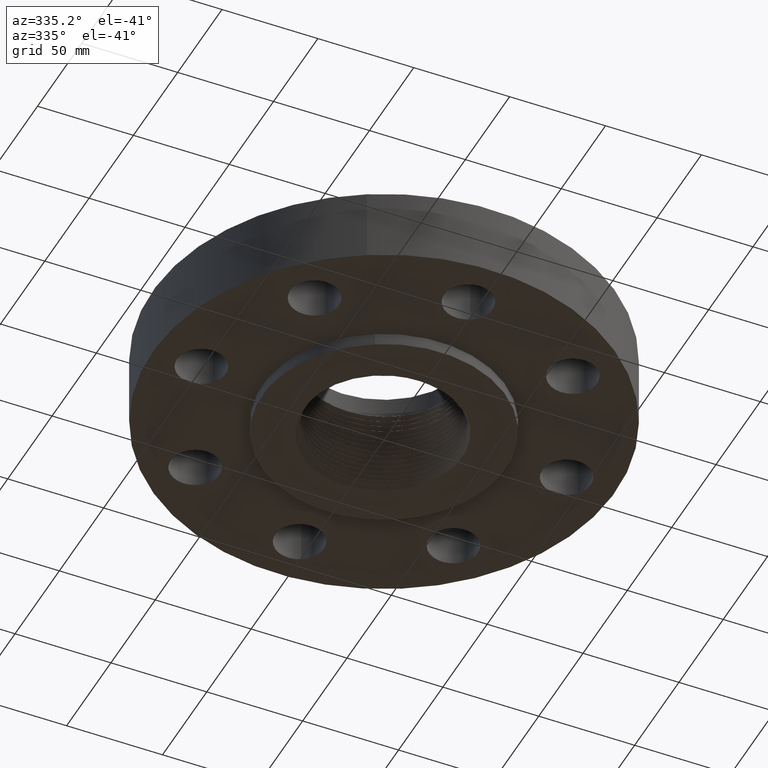
[diagram: clean part render]
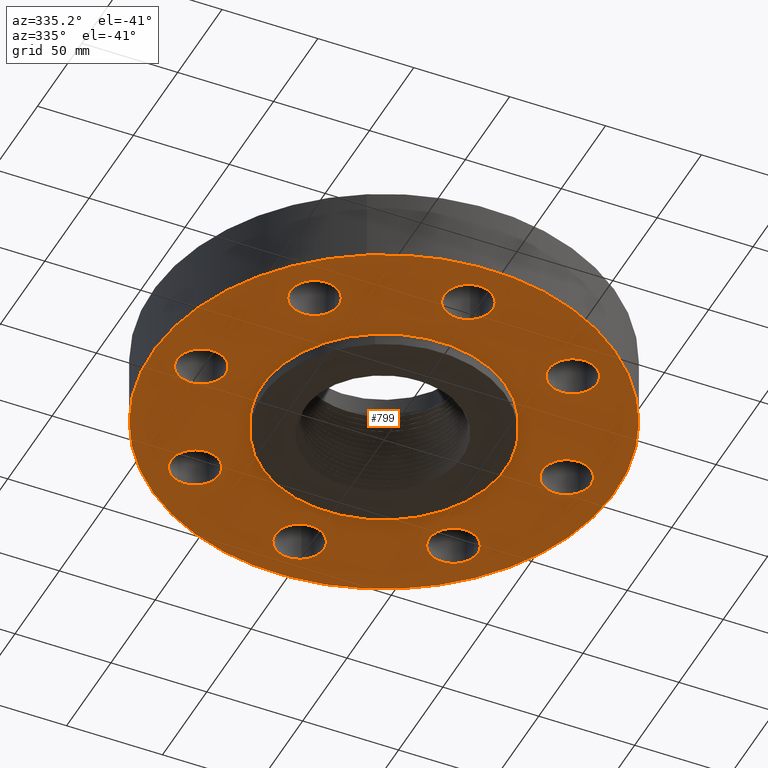
[diagram: same view with one face highlighted and labeled with its STEP entity id]
A machine part, auxiliary view. The second image highlights one B-rep face of the part: STEP entity #799.
In plain terms, the highlighted planar face has unit normal (0, 0, -1).
Its self-contained STEP definition (entity closure, byte-faithful):
#372=AXIS2_PLACEMENT_3D('Circle Axis2P3D',#370,#371,$) ;
#398=AXIS2_PLACEMENT_3D('Circle Axis2P3D',#396,#397,$) ;
#420=AXIS2_PLACEMENT_3D('Circle Axis2P3D',#418,#419,$) ;
#455=AXIS2_PLACEMENT_3D('Circle Axis2P3D',#453,#454,$) ;
#627=AXIS2_PLACEMENT_3D('Circle Axis2P3D',#625,#626,$) ;
#646=AXIS2_PLACEMENT_3D('Circle Axis2P3D',#644,#645,$) ;
#659=AXIS2_PLACEMENT_3D('Plane Axis2P3D',#656,#657,#658) ;
#675=AXIS2_PLACEMENT_3D('Circle Axis2P3D',#673,#674,$) ;
#684=AXIS2_PLACEMENT_3D('Circle Axis2P3D',#682,#683,$) ;
#693=AXIS2_PLACEMENT_3D('Circle Axis2P3D',#691,#692,$) ;
#702=AXIS2_PLACEMENT_3D('Circle Axis2P3D',#700,#701,$) ;
#711=AXIS2_PLACEMENT_3D('Circle Axis2P3D',#709,#710,$) ;
#720=AXIS2_PLACEMENT_3D('Circle Axis2P3D',#718,#719,$) ;
#729=AXIS2_PLACEMENT_3D('Circle Axis2P3D',#727,#728,$) ;
#738=AXIS2_PLACEMENT_3D('Circle Axis2P3D',#736,#737,$) ;
#747=AXIS2_PLACEMENT_3D('Circle Axis2P3D',#745,#746,$) ;
#756=AXIS2_PLACEMENT_3D('Circle Axis2P3D',#754,#755,$) ;
#765=AXIS2_PLACEMENT_3D('Circle Axis2P3D',#763,#764,$) ;
#774=AXIS2_PLACEMENT_3D('Circle Axis2P3D',#772,#773,$) ;
#783=AXIS2_PLACEMENT_3D('Circle Axis2P3D',#781,#782,$) ;
#792=AXIS2_PLACEMENT_3D('Circle Axis2P3D',#790,#791,$) ;
#365=CARTESIAN_POINT('Vertex',(3.31120871907,0.239712769303,0.)) ;
#370=CARTESIAN_POINT('Axis2P3D Location',(3.75000000002,0.,0.)) ;
#374=CARTESIAN_POINT('Vertex',(4.18879128096,-0.239712769303,0.)) ;
#396=CARTESIAN_POINT('Axis2P3D Location',(3.75000000002,0.,0.)) ;
#418=CARTESIAN_POINT('Axis2P3D Location',(0.,0.,5.59482469102E-016)) ;
#422=CARTESIAN_POINT('Vertex',(-2.27727130838,-4.168517169,6.99353086378E-016)) ;
#424=CARTESIAN_POINT('Vertex',(2.27727130838,4.168517169,6.99353086378E-016)) ;
#453=CARTESIAN_POINT('Axis2P3D Location',(0.,0.,5.59482469102E-016)) ;
#622=CARTESIAN_POINT('Vertex',(-1.19856384652,-2.19395640473,2.79741234551E-016)) ;
#625=CARTESIAN_POINT('Axis2P3D Location',(0.,0.,2.79741234551E-016)) ;
#629=CARTESIAN_POINT('Vertex',(1.19856384652,2.19395640473,2.79741234551E-016)) ;
#644=CARTESIAN_POINT('Axis2P3D Location',(0.,0.,2.79741234551E-016)) ;
#656=CARTESIAN_POINT('Axis2P3D Location',(0.,2.50000000001,0.)) ;
#673=CARTESIAN_POINT('Axis2P3D Location',(2.65165042946,-2.65165042946,0.)) ;
#677=CARTESIAN_POINT('Vertex',(2.51088066389,-2.17187561447,0.)) ;
#679=CARTESIAN_POINT('Vertex',(2.79242019503,-3.13142524445,0.)) ;
#682=CARTESIAN_POINT('Axis2P3D Location',(2.65165042946,-2.65165042946,0.)) ;
#691=CARTESIAN_POINT('Axis2P3D Location',(-3.49676543189E-016,-3.75000000002,0.)) ;
#695=CARTESIAN_POINT('Vertex',(0.239712769303,-3.31120871907,0.)) ;
#697=CARTESIAN_POINT('Vertex',(-0.239712769303,-4.18879128096,0.)) ;
#700=CARTESIAN_POINT('Axis2P3D Location',(-1.39870617276E-016,-3.75000000002,0.)) ;
#709=CARTESIAN_POINT('Axis2P3D Location',(-2.65165042946,-2.65165042946,0.)) ;
#713=CARTESIAN_POINT('Vertex',(-2.17187561447,-2.51088066389,0.)) ;
#715=CARTESIAN_POINT('Vertex',(-3.13142524445,-2.79242019503,0.)) ;
#718=CARTESIAN_POINT('Axis2P3D Location',(-2.65165042946,-2.65165042946,0.)) ;
#727=CARTESIAN_POINT('Axis2P3D Location',(-3.75000000002,0.,0.)) ;
#731=CARTESIAN_POINT('Vertex',(-3.31120871907,-0.239712769303,0.)) ;
#733=CARTESIAN_POINT('Vertex',(-4.18879128096,0.239712769303,0.)) ;
#736=CARTESIAN_POINT('Axis2P3D Location',(-3.75000000002,-2.79741234551E-016,0.)) ;
#745=CARTESIAN_POINT('Axis2P3D Location',(-2.65165042946,2.65165042946,0.)) ;
#749=CARTESIAN_POINT('Vertex',(-2.51088066389,2.17187561447,0.)) ;
#751=CARTESIAN_POINT('Vertex',(-2.79242019503,3.13142524445,0.)) ;
#754=CARTESIAN_POINT('Axis2P3D Location',(-2.65165042946,2.65165042946,0.)) ;
#763=CARTESIAN_POINT('Axis2P3D Location',(-6.2941777774E-016,3.75000000002,0.)) ;
#767=CARTESIAN_POINT('Vertex',(-0.239712769303,3.31120871907,0.)) ;
#769=CARTESIAN_POINT('Vertex',(0.239712769303,4.18879128096,0.)) ;
#772=CARTESIAN_POINT('Axis2P3D Location',(-6.2941777774E-016,3.75000000002,0.)) ;
#781=CARTESIAN_POINT('Axis2P3D Location',(2.65165042946,2.65165042946,0.)) ;
#785=CARTESIAN_POINT('Vertex',(2.17187561447,2.51088066389,0.)) ;
#787=CARTESIAN_POINT('Vertex',(3.13142524445,2.79242019503,0.)) ;
#790=CARTESIAN_POINT('Axis2P3D Location',(2.65165042946,2.65165042946,0.)) ;
#371=DIRECTION('Axis2P3D Direction',(0.,-0.,-0.0393700787402)) ;
#397=DIRECTION('Axis2P3D Direction',(0.,-0.,-0.0393700787402)) ;
#419=DIRECTION('Axis2P3D Direction',(0.,0.,-0.0393700787402)) ;
#454=DIRECTION('Axis2P3D Direction',(0.,0.,-0.0393700787402)) ;
#626=DIRECTION('Axis2P3D Direction',(0.,0.,-0.0393700787402)) ;
#645=DIRECTION('Axis2P3D Direction',(0.,0.,-0.0393700787402)) ;
#657=DIRECTION('Axis2P3D Direction',(0.,0.,-0.0393700787402)) ;
#658=DIRECTION('Axis2P3D XDirection',(0.0393700787402,0.,0.)) ;
#674=DIRECTION('Axis2P3D Direction',(0.,0.,-0.0393700787402)) ;
#683=DIRECTION('Axis2P3D Direction',(0.,0.,-0.0393700787402)) ;
#692=DIRECTION('Axis2P3D Direction',(0.,0.,-0.0393700787402)) ;
#701=DIRECTION('Axis2P3D Direction',(0.,0.,-0.0393700787402)) ;
#710=DIRECTION('Axis2P3D Direction',(0.,0.,-0.0393700787402)) ;
#719=DIRECTION('Axis2P3D Direction',(0.,0.,-0.0393700787402)) ;
#728=DIRECTION('Axis2P3D Direction',(0.,0.,-0.0393700787402)) ;
#737=DIRECTION('Axis2P3D Direction',(0.,0.,-0.0393700787402)) ;
#746=DIRECTION('Axis2P3D Direction',(0.,0.,-0.0393700787402)) ;
#755=DIRECTION('Axis2P3D Direction',(0.,0.,-0.0393700787402)) ;
#764=DIRECTION('Axis2P3D Direction',(0.,0.,-0.0393700787402)) ;
#773=DIRECTION('Axis2P3D Direction',(0.,0.,-0.0393700787402)) ;
#782=DIRECTION('Axis2P3D Direction',(0.,0.,-0.0393700787402)) ;
#791=DIRECTION('Axis2P3D Direction',(0.,0.,-0.0393700787402)) ;
#662=ORIENTED_EDGE('',*,*,#426,.T.) ;
#663=ORIENTED_EDGE('',*,*,#457,.T.) ;
#666=ORIENTED_EDGE('',*,*,#400,.F.) ;
#667=ORIENTED_EDGE('',*,*,#376,.F.) ;
#670=ORIENTED_EDGE('',*,*,#648,.F.) ;
#671=ORIENTED_EDGE('',*,*,#631,.F.) ;
#688=ORIENTED_EDGE('',*,*,#681,.F.) ;
#689=ORIENTED_EDGE('',*,*,#686,.F.) ;
#706=ORIENTED_EDGE('',*,*,#699,.F.) ;
#707=ORIENTED_EDGE('',*,*,#704,.F.) ;
#724=ORIENTED_EDGE('',*,*,#717,.F.) ;
#725=ORIENTED_EDGE('',*,*,#722,.F.) ;
#742=ORIENTED_EDGE('',*,*,#735,.F.) ;
#743=ORIENTED_EDGE('',*,*,#740,.F.) ;
#760=ORIENTED_EDGE('',*,*,#753,.F.) ;
#761=ORIENTED_EDGE('',*,*,#758,.F.) ;
#778=ORIENTED_EDGE('',*,*,#771,.F.) ;
#779=ORIENTED_EDGE('',*,*,#776,.F.) ;
#796=ORIENTED_EDGE('',*,*,#789,.F.) ;
#797=ORIENTED_EDGE('',*,*,#794,.F.) ;
#668=FACE_BOUND('',#665,.T.) ;
#672=FACE_BOUND('',#669,.T.) ;
#690=FACE_BOUND('',#687,.T.) ;
#708=FACE_BOUND('',#705,.T.) ;
#726=FACE_BOUND('',#723,.T.) ;
#744=FACE_BOUND('',#741,.T.) ;
#762=FACE_BOUND('',#759,.T.) ;
#780=FACE_BOUND('',#777,.T.) ;
#798=FACE_BOUND('',#795,.T.) ;
#799=ADVANCED_FACE('PartBody',(#664,#668,#672,#690,#708,#726,#744,#762,#780,#798),#660,.T.) ;
#373=CIRCLE('generated circle',#372,0.500000000002) ;
#399=CIRCLE('generated circle',#398,0.500000000002) ;
#421=CIRCLE('generated circle',#420,4.75000000002) ;
#456=CIRCLE('generated circle',#455,4.75000000002) ;
#628=CIRCLE('generated circle',#627,2.50000000001) ;
#647=CIRCLE('generated circle',#646,2.50000000001) ;
#676=CIRCLE('generated circle',#675,0.500000000002) ;
#685=CIRCLE('generated circle',#684,0.500000000002) ;
#694=CIRCLE('generated circle',#693,0.500000000002) ;
#703=CIRCLE('generated circle',#702,0.500000000002) ;
#712=CIRCLE('generated circle',#711,0.500000000002) ;
#721=CIRCLE('generated circle',#720,0.500000000002) ;
#730=CIRCLE('generated circle',#729,0.500000000002) ;
#739=CIRCLE('generated circle',#738,0.500000000002) ;
#748=CIRCLE('generated circle',#747,0.500000000002) ;
#757=CIRCLE('generated circle',#756,0.500000000002) ;
#766=CIRCLE('generated circle',#765,0.500000000002) ;
#775=CIRCLE('generated circle',#774,0.500000000002) ;
#784=CIRCLE('generated circle',#783,0.500000000002) ;
#793=CIRCLE('generated circle',#792,0.500000000002) ;
#376=EDGE_CURVE('',#366,#375,#373,.T.) ;
#400=EDGE_CURVE('',#375,#366,#399,.T.) ;
#426=EDGE_CURVE('',#423,#425,#421,.T.) ;
#457=EDGE_CURVE('',#425,#423,#456,.T.) ;
#631=EDGE_CURVE('',#623,#630,#628,.T.) ;
#648=EDGE_CURVE('',#630,#623,#647,.T.) ;
#681=EDGE_CURVE('',#678,#680,#676,.T.) ;
#686=EDGE_CURVE('',#680,#678,#685,.T.) ;
#699=EDGE_CURVE('',#696,#698,#694,.T.) ;
#704=EDGE_CURVE('',#698,#696,#703,.T.) ;
#717=EDGE_CURVE('',#714,#716,#712,.T.) ;
#722=EDGE_CURVE('',#716,#714,#721,.T.) ;
#735=EDGE_CURVE('',#732,#734,#730,.T.) ;
#740=EDGE_CURVE('',#734,#732,#739,.T.) ;
#753=EDGE_CURVE('',#750,#752,#748,.T.) ;
#758=EDGE_CURVE('',#752,#750,#757,.T.) ;
#771=EDGE_CURVE('',#768,#770,#766,.T.) ;
#776=EDGE_CURVE('',#770,#768,#775,.T.) ;
#789=EDGE_CURVE('',#786,#788,#784,.T.) ;
#794=EDGE_CURVE('',#788,#786,#793,.T.) ;
#661=EDGE_LOOP('',(#662,#663)) ;
#665=EDGE_LOOP('',(#666,#667)) ;
#669=EDGE_LOOP('',(#670,#671)) ;
#687=EDGE_LOOP('',(#688,#689)) ;
#705=EDGE_LOOP('',(#706,#707)) ;
#723=EDGE_LOOP('',(#724,#725)) ;
#741=EDGE_LOOP('',(#742,#743)) ;
#759=EDGE_LOOP('',(#760,#761)) ;
#777=EDGE_LOOP('',(#778,#779)) ;
#795=EDGE_LOOP('',(#796,#797)) ;
#664=FACE_OUTER_BOUND('',#661,.T.) ;
#660=PLANE('',#659) ;
#366=VERTEX_POINT('',#365) ;
#375=VERTEX_POINT('',#374) ;
#423=VERTEX_POINT('',#422) ;
#425=VERTEX_POINT('',#424) ;
#623=VERTEX_POINT('',#622) ;
#630=VERTEX_POINT('',#629) ;
#678=VERTEX_POINT('',#677) ;
#680=VERTEX_POINT('',#679) ;
#696=VERTEX_POINT('',#695) ;
#698=VERTEX_POINT('',#697) ;
#714=VERTEX_POINT('',#713) ;
#716=VERTEX_POINT('',#715) ;
#732=VERTEX_POINT('',#731) ;
#734=VERTEX_POINT('',#733) ;
#750=VERTEX_POINT('',#749) ;
#752=VERTEX_POINT('',#751) ;
#768=VERTEX_POINT('',#767) ;
#770=VERTEX_POINT('',#769) ;
#786=VERTEX_POINT('',#785) ;
#788=VERTEX_POINT('',#787) ;